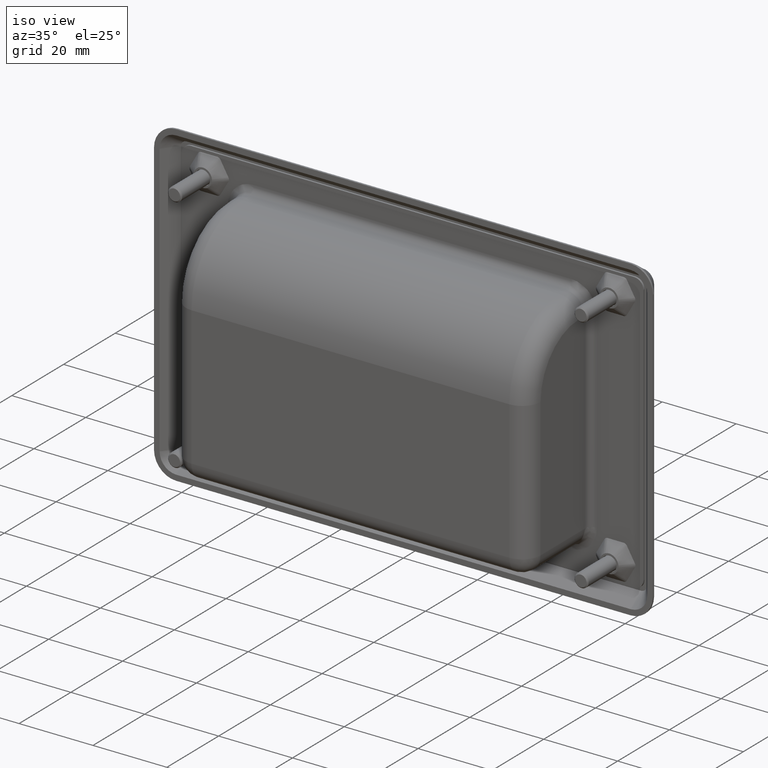
[diagram: clean part render]
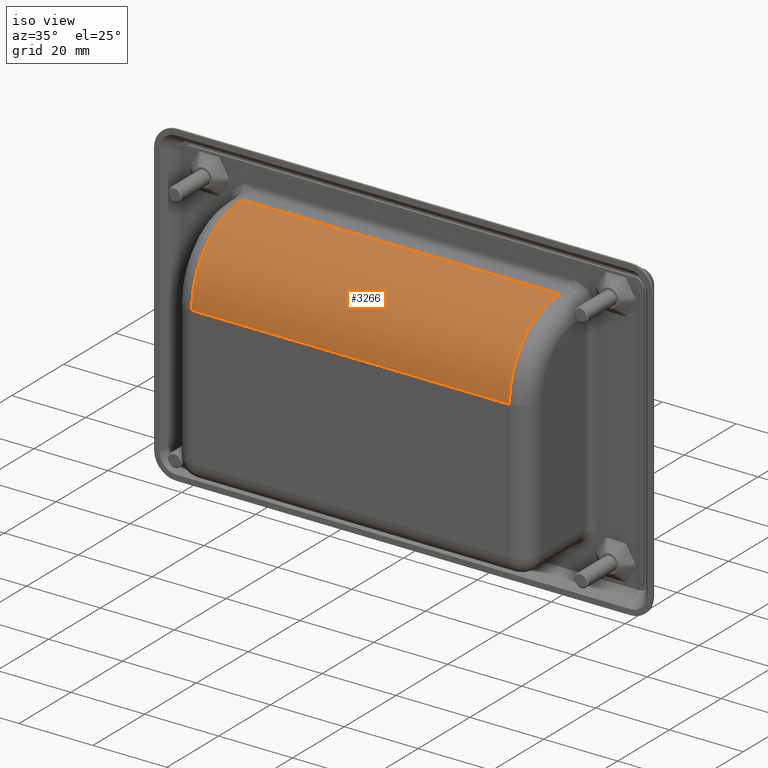
[diagram: same view with one face highlighted and labeled with its STEP entity id]
A machine part, iso view. The second image highlights one B-rep face of the part: STEP entity #3266.
In plain terms, the highlighted cylindrical surface (partial cylindrical patch) has radius 19.5 mm, axis along (1, 0, 0).
Its self-contained STEP definition (entity closure, byte-faithful):
#451=FACE_OUTER_BOUND('',#675,.T.);
#675=EDGE_LOOP('',(#2976,#2977,#2978,#2979));
#929=LINE('',#7286,#1173);
#930=LINE('',#7287,#1174);
#1173=VECTOR('',#4394,86.);
#1174=VECTOR('',#4395,86.);
#1322=CIRCLE('',#3536,19.5);
#1325=CIRCLE('',#3543,19.5);
#1621=VERTEX_POINT('',#7218);
#1623=VERTEX_POINT('',#7224);
#1625=VERTEX_POINT('',#7235);
#1626=VERTEX_POINT('',#7239);
#2062=EDGE_CURVE('',#1621,#1623,#1322,.T.);
#2069=EDGE_CURVE('',#1626,#1625,#1325,.T.);
#2091=EDGE_CURVE('',#1621,#1625,#929,.T.);
#2092=EDGE_CURVE('',#1623,#1626,#930,.T.);
#2976=ORIENTED_EDGE('',*,*,#2062,.F.);
#2977=ORIENTED_EDGE('',*,*,#2091,.T.);
#2978=ORIENTED_EDGE('',*,*,#2069,.F.);
#2979=ORIENTED_EDGE('',*,*,#2092,.F.);
#3078=CYLINDRICAL_SURFACE('',#3569,19.5);
#3266=ADVANCED_FACE('',(#451),#3078,.T.);
#3536=AXIS2_PLACEMENT_3D('',#7228,#4312,#4313);
#3543=AXIS2_PLACEMENT_3D('',#7241,#4330,#4331);
#3569=AXIS2_PLACEMENT_3D('',#7285,#4392,#4393);
#4312=DIRECTION('center_axis',(1.,0.,0.));
#4313=DIRECTION('ref_axis',(0.,-0.707106781186548,0.707106781186547));
#4330=DIRECTION('center_axis',(-1.,0.,0.));
#4331=DIRECTION('ref_axis',(0.,-0.707106781186548,0.707106781186547));
#4392=DIRECTION('center_axis',(1.,0.,0.));
#4393=DIRECTION('ref_axis',(0.,-5.69345140833414E-17,-1.));
#4394=DIRECTION('',(-1.,0.,0.));
#4395=DIRECTION('',(-1.,0.,0.));
#7218=CARTESIAN_POINT('',(43.,-4.5,31.));
#7224=CARTESIAN_POINT('',(43.,-24.,11.5));
#7228=CARTESIAN_POINT('Origin',(43.,-4.5,11.5));
#7235=CARTESIAN_POINT('',(-43.,-4.5,31.));
#7239=CARTESIAN_POINT('',(-43.,-24.,11.5));
#7241=CARTESIAN_POINT('Origin',(-43.,-4.5,11.5));
#7285=CARTESIAN_POINT('Origin',(0.,-4.5,11.5));
#7286=CARTESIAN_POINT('',(0.,-4.5,31.));
#7287=CARTESIAN_POINT('',(0.,-24.,11.5));